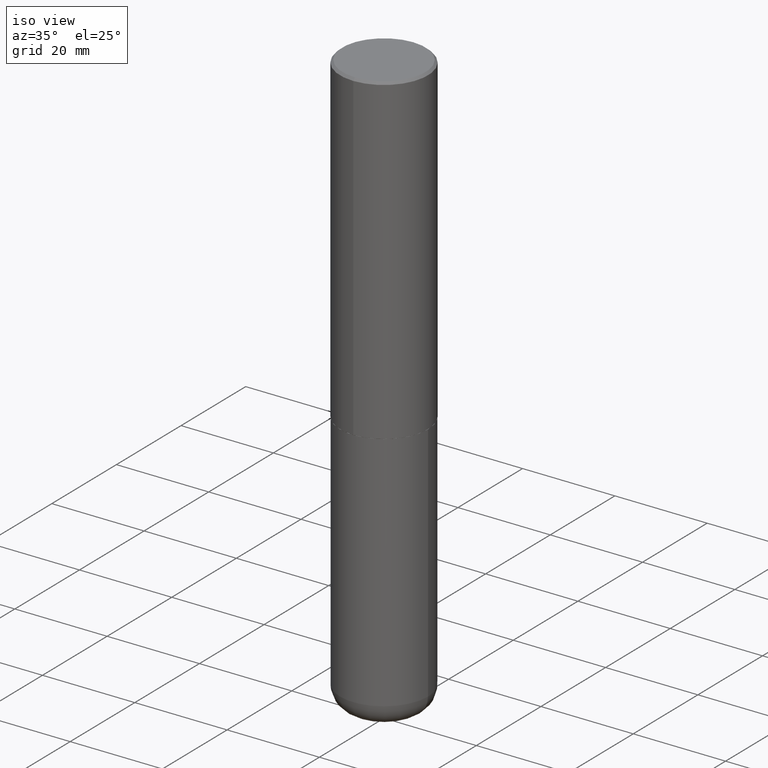
[diagram: clean part render]
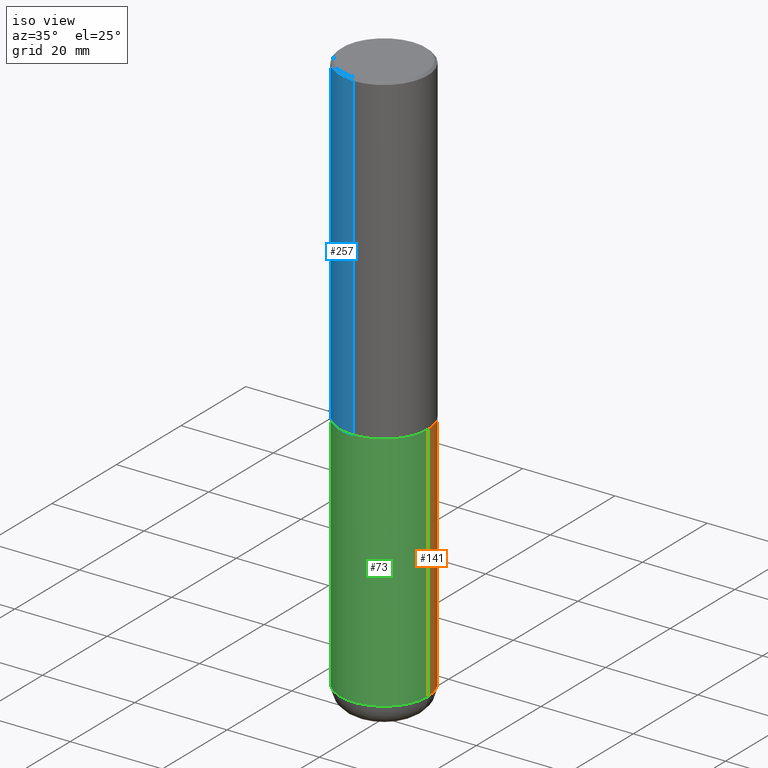
[diagram: same view with three faces highlighted in distinct colors, each labeled with its STEP entity id]
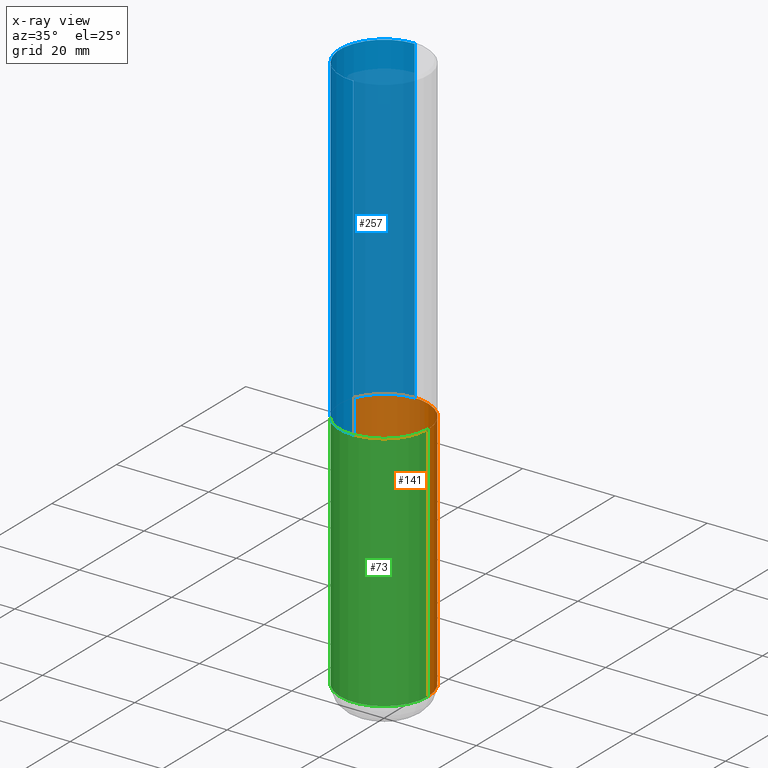
[diagram: x-ray of the same camera — body ghosted, the three highlighted faces saturated]
A machine part, iso view with three faces highlighted in distinct colors.
The next image is the same camera in x-ray (body ghosted, the three faces saturated) — at least one of them is partly hidden behind the body in this view.
Their STEP definitions:

[orange] entity #141 — the highlighted cylindrical surface (partial cylindrical patch) has radius 9.525 mm, axis along (-0, 0, 1).
#3 = DIRECTION ( 'NONE',  ( 1.000000000000000000, -6.982962677686265922E-15, 4.876176775795935793E-29 ) ) ;
#7 = DIRECTION ( 'NONE',  ( -2.445468806185136597E-29, 3.491481338843145583E-15, 1.000000000000000000 ) ) ;
#18 = VECTOR ( 'NONE', #271, 39.37007874015748143 ) ;
#29 = VECTOR ( 'NONE', #388, 39.37007874015748143 ) ;
#31 = EDGE_LOOP ( 'NONE', ( #378, #385, #46, #205 ) ) ;
#46 = ORIENTED_EDGE ( 'NONE', *, *, #174, .F. ) ;
#51 = CARTESIAN_POINT ( 'NONE',  ( 0.3750000000000000555, -1.222018468595100145E-14, -2.750000000000000000 ) ) ;
#63 = VERTEX_POINT ( 'NONE', #237 ) ;
#75 = FACE_OUTER_BOUND ( 'NONE', #31, .T. ) ;
#131 = LINE ( 'NONE', #198, #18 ) ;
#135 = DIRECTION ( 'NONE',  ( 1.000000000000000000, -6.982962677686265922E-15, 0.000000000000000000 ) ) ;
#136 = CARTESIAN_POINT ( 'NONE',  ( 0.000000000000000000, 0.000000000000000000, 0.000000000000000000 ) ) ;
#137 = VERTEX_POINT ( 'NONE', #367 ) ;
#139 = DIRECTION ( 'NONE',  ( -2.445468806185136597E-29, 3.491481338843145583E-15, 1.000000000000000000 ) ) ;
#141 = ADVANCED_FACE ( 'NONE', ( #75 ), #168, .T. ) ;
#146 = EDGE_CURVE ( 'NONE', #137, #349, #131, .T. ) ;
#158 = LINE ( 'NONE', #262, #29 ) ;
#164 = DIRECTION ( 'NONE',  ( 1.000000000000000000, -6.982962677686266711E-15, 0.000000000000000000 ) ) ;
#168 = CYLINDRICAL_SURFACE ( 'NONE', #276, 0.3750000000000001110 ) ;
#174 = EDGE_CURVE ( 'NONE', #253, #349, #369, .T. ) ;
#177 = EDGE_CURVE ( 'NONE', #63, #137, #290, .T. ) ;
#197 = CARTESIAN_POINT ( 'NONE',  ( 6.725039217009124520E-29, -9.601573681818649859E-15, -2.750000000000000000 ) ) ;
#198 = CARTESIAN_POINT ( 'NONE',  ( -0.3750000000000001110, 2.664535259100376486E-15, -1.844600658845590159E-29 ) ) ;
#205 = ORIENTED_EDGE ( 'NONE', *, *, #411, .F. ) ;
#232 = AXIS2_PLACEMENT_3D ( 'NONE', #197, #292, #164 ) ;
#237 = CARTESIAN_POINT ( 'NONE',  ( 0.3750000000000000555, -1.941263624396788015E-14, -4.810000000000000497 ) ) ;
#253 = VERTEX_POINT ( 'NONE', #51 ) ;
#262 = CARTESIAN_POINT ( 'NONE',  ( 0.3750000000000001110, -2.618611004132350411E-15, 1.828566290923476483E-29 ) ) ;
#271 = DIRECTION ( 'NONE',  ( -2.445468806185136877E-29, 3.491481338843145188E-15, 1.000000000000000000 ) ) ;
#272 = AXIS2_PLACEMENT_3D ( 'NONE', #296, #7, #135 ) ;
#276 = AXIS2_PLACEMENT_3D ( 'NONE', #136, #139, #3 ) ;
#286 = CARTESIAN_POINT ( 'NONE',  ( -0.3750000000000000555, -1.053326420172671351E-14, -2.750000000000000000 ) ) ;
#290 = CIRCLE ( 'NONE', #272, 0.3750000000000001110 ) ;
#292 = DIRECTION ( 'NONE',  ( -2.445468806185136597E-29, 3.491481338843145583E-15, 1.000000000000000000 ) ) ;
#296 = CARTESIAN_POINT ( 'NONE',  ( 1.176270495775050811E-28, -1.679402523983553013E-14, -4.810000000000000497 ) ) ;
#349 = VERTEX_POINT ( 'NONE', #286 ) ;
#367 = CARTESIAN_POINT ( 'NONE',  ( -0.3750000000000000555, -1.412948998073515443E-14, -4.810000000000000497 ) ) ;
#369 = CIRCLE ( 'NONE', #232, 0.3750000000000000555 ) ;
#378 = ORIENTED_EDGE ( 'NONE', *, *, #177, .T. ) ;
#385 = ORIENTED_EDGE ( 'NONE', *, *, #146, .T. ) ;
#388 = DIRECTION ( 'NONE',  ( -2.445468806185136877E-29, 3.491481338843145188E-15, 1.000000000000000000 ) ) ;
#411 = EDGE_CURVE ( 'NONE', #63, #253, #158, .T. ) ;

[blue] entity #257 — the highlighted cylindrical surface (partial cylindrical patch) has radius 9.525 mm, axis along (-0, 0, 1).
#20 = CIRCLE ( 'NONE', #241, 0.3750000000000003886 ) ;
#24 = CARTESIAN_POINT ( 'NONE',  ( -2.618611004132351594E-15, -0.3750000000000002220, 1.308998548422625521E-15 ) ) ;
#32 = LINE ( 'NONE', #24, #295 ) ;
#34 = CARTESIAN_POINT ( 'NONE',  ( -2.572686749164323547E-15, -0.3750000000000001110, -0.01999999999999877570 ) ) ;
#36 = CARTESIAN_POINT ( 'NONE',  ( 6.724165036897648492E-29, -9.595832025636787455E-15, -2.749000000000000110 ) ) ;
#55 = VERTEX_POINT ( 'NONE', #299 ) ;
#57 = DIRECTION ( 'NONE',  ( -2.446040391741596606E-29, 3.490662795793665557E-15, 1.000000000000000000 ) ) ;
#86 = AXIS2_PLACEMENT_3D ( 'NONE', #329, #330, #400 ) ;
#89 = DIRECTION ( 'NONE',  ( -6.982962677686265922E-15, -1.000000000000000000, 2.913971193241877611E-15 ) ) ;
#115 = DIRECTION ( 'NONE',  ( -6.982962677686266711E-15, -1.000000000000000000, 3.490662795793665951E-15 ) ) ;
#119 = DIRECTION ( 'NONE',  ( -2.446040391741596606E-29, 3.490662795793665557E-15, 1.000000000000000000 ) ) ;
#160 = EDGE_CURVE ( 'NONE', #375, #410, #305, .T. ) ;
#181 = DIRECTION ( 'NONE',  ( -2.446040391741596606E-29, 3.490662795793665557E-15, 1.000000000000000000 ) ) ;
#183 = ORIENTED_EDGE ( 'NONE', *, *, #160, .F. ) ;
#189 = ORIENTED_EDGE ( 'NONE', *, *, #333, .T. ) ;
#190 = CARTESIAN_POINT ( 'NONE',  ( 2.664535259100376880E-15, 0.3750000000000002220, -1.308998548422625521E-15 ) ) ;
#219 = VERTEX_POINT ( 'NONE', #300 ) ;
#228 = LINE ( 'NONE', #190, #261 ) ;
#241 = AXIS2_PLACEMENT_3D ( 'NONE', #36, #181, #89 ) ;
#242 = ORIENTED_EDGE ( 'NONE', *, *, #418, .F. ) ;
#257 = ADVANCED_FACE ( 'NONE', ( #376 ), #342, .T. ) ;
#261 = VECTOR ( 'NONE', #323, 39.37007874015748143 ) ;
#295 = VECTOR ( 'NONE', #119, 39.37007874015748143 ) ;
#299 = CARTESIAN_POINT ( 'NONE',  ( 2.664535259100411196E-15, 0.3749999999999907296, -2.749000000000000998 ) ) ;
#300 = CARTESIAN_POINT ( 'NONE',  ( -2.618611004132284935E-15, -0.3750000000000099920, -2.748999999999999222 ) ) ;
#301 = CARTESIAN_POINT ( 'NONE',  ( 0.000000000000000000, 0.000000000000000000, 0.000000000000000000 ) ) ;
#305 = CIRCLE ( 'NONE', #86, 0.3750000000000000555 ) ;
#316 = AXIS2_PLACEMENT_3D ( 'NONE', #301, #57, #115 ) ;
#323 = DIRECTION ( 'NONE',  ( -2.446040391741596606E-29, 3.490662795793665557E-15, 1.000000000000000000 ) ) ;
#325 = EDGE_LOOP ( 'NONE', ( #242, #351, #189, #183 ) ) ;
#329 = CARTESIAN_POINT ( 'NONE',  ( 4.892080783483214581E-31, -6.981325591587361238E-17, -0.02000000000000008715 ) ) ;
#330 = DIRECTION ( 'NONE',  ( -2.446040391741596606E-29, 3.490662795793665557E-15, 1.000000000000000000 ) ) ;
#333 = EDGE_CURVE ( 'NONE', #219, #410, #32, .T. ) ;
#340 = EDGE_CURVE ( 'NONE', #55, #219, #20, .T. ) ;
#342 = CYLINDRICAL_SURFACE ( 'NONE', #316, 0.3750000000000002220 ) ;
#351 = ORIENTED_EDGE ( 'NONE', *, *, #340, .T. ) ;
#355 = CARTESIAN_POINT ( 'NONE',  ( 2.618611004132350411E-15, 0.3749999999999999445, -0.02000000000000139513 ) ) ;
#375 = VERTEX_POINT ( 'NONE', #355 ) ;
#376 = FACE_OUTER_BOUND ( 'NONE', #325, .T. ) ;
#400 = DIRECTION ( 'NONE',  ( -6.982962677686265922E-15, -1.000000000000000000, 3.494488891895536035E-15 ) ) ;
#410 = VERTEX_POINT ( 'NONE', #34 ) ;
#418 = EDGE_CURVE ( 'NONE', #55, #375, #228, .T. ) ;

[green] entity #73 — the highlighted cylindrical surface (partial cylindrical patch) has radius 9.525 mm, axis along (-0, 0, 1).
#10 = ORIENTED_EDGE ( 'NONE', *, *, #294, .T. ) ;
#15 = DIRECTION ( 'NONE',  ( 1.000000000000000000, -6.982962677686265922E-15, 0.000000000000000000 ) ) ;
#18 = VECTOR ( 'NONE', #271, 39.37007874015748143 ) ;
#29 = VECTOR ( 'NONE', #388, 39.37007874015748143 ) ;
#41 = DIRECTION ( 'NONE',  ( 1.000000000000000000, -6.982962677686266711E-15, 0.000000000000000000 ) ) ;
#51 = CARTESIAN_POINT ( 'NONE',  ( 0.3750000000000000555, -1.222018468595100145E-14, -2.750000000000000000 ) ) ;
#62 = CIRCLE ( 'NONE', #124, 0.3750000000000000555 ) ;
#63 = VERTEX_POINT ( 'NONE', #237 ) ;
#73 = ADVANCED_FACE ( 'NONE', ( #328 ), #370, .T. ) ;
#77 = EDGE_CURVE ( 'NONE', #349, #253, #62, .T. ) ;
#93 = ORIENTED_EDGE ( 'NONE', *, *, #146, .F. ) ;
#102 = DIRECTION ( 'NONE',  ( 1.000000000000000000, -6.982962677686265922E-15, 4.876176775795935793E-29 ) ) ;
#103 = CIRCLE ( 'NONE', #266, 0.3750000000000001110 ) ;
#104 = DIRECTION ( 'NONE',  ( -2.445468806185136597E-29, 3.491481338843145583E-15, 1.000000000000000000 ) ) ;
#124 = AXIS2_PLACEMENT_3D ( 'NONE', #240, #195, #41 ) ;
#131 = LINE ( 'NONE', #198, #18 ) ;
#137 = VERTEX_POINT ( 'NONE', #367 ) ;
#138 = AXIS2_PLACEMENT_3D ( 'NONE', #268, #104, #102 ) ;
#146 = EDGE_CURVE ( 'NONE', #137, #349, #131, .T. ) ;
#158 = LINE ( 'NONE', #262, #29 ) ;
#175 = DIRECTION ( 'NONE',  ( -2.445468806185136597E-29, 3.491481338843145583E-15, 1.000000000000000000 ) ) ;
#185 = ORIENTED_EDGE ( 'NONE', *, *, #77, .F. ) ;
#195 = DIRECTION ( 'NONE',  ( -2.445468806185136597E-29, 3.491481338843145583E-15, 1.000000000000000000 ) ) ;
#198 = CARTESIAN_POINT ( 'NONE',  ( -0.3750000000000001110, 2.664535259100376486E-15, -1.844600658845590159E-29 ) ) ;
#237 = CARTESIAN_POINT ( 'NONE',  ( 0.3750000000000000555, -1.941263624396788015E-14, -4.810000000000000497 ) ) ;
#240 = CARTESIAN_POINT ( 'NONE',  ( 6.725039217009124520E-29, -9.601573681818649859E-15, -2.750000000000000000 ) ) ;
#253 = VERTEX_POINT ( 'NONE', #51 ) ;
#262 = CARTESIAN_POINT ( 'NONE',  ( 0.3750000000000001110, -2.618611004132350411E-15, 1.828566290923476483E-29 ) ) ;
#266 = AXIS2_PLACEMENT_3D ( 'NONE', #339, #175, #15 ) ;
#268 = CARTESIAN_POINT ( 'NONE',  ( 0.000000000000000000, 0.000000000000000000, 0.000000000000000000 ) ) ;
#271 = DIRECTION ( 'NONE',  ( -2.445468806185136877E-29, 3.491481338843145188E-15, 1.000000000000000000 ) ) ;
#286 = CARTESIAN_POINT ( 'NONE',  ( -0.3750000000000000555, -1.053326420172671351E-14, -2.750000000000000000 ) ) ;
#294 = EDGE_CURVE ( 'NONE', #137, #63, #103, .T. ) ;
#317 = ORIENTED_EDGE ( 'NONE', *, *, #411, .T. ) ;
#328 = FACE_OUTER_BOUND ( 'NONE', #341, .T. ) ;
#339 = CARTESIAN_POINT ( 'NONE',  ( 1.176270495775050811E-28, -1.679402523983553013E-14, -4.810000000000000497 ) ) ;
#341 = EDGE_LOOP ( 'NONE', ( #93, #10, #317, #185 ) ) ;
#349 = VERTEX_POINT ( 'NONE', #286 ) ;
#367 = CARTESIAN_POINT ( 'NONE',  ( -0.3750000000000000555, -1.412948998073515443E-14, -4.810000000000000497 ) ) ;
#370 = CYLINDRICAL_SURFACE ( 'NONE', #138, 0.3750000000000001110 ) ;
#388 = DIRECTION ( 'NONE',  ( -2.445468806185136877E-29, 3.491481338843145188E-15, 1.000000000000000000 ) ) ;
#411 = EDGE_CURVE ( 'NONE', #63, #253, #158, .T. ) ;